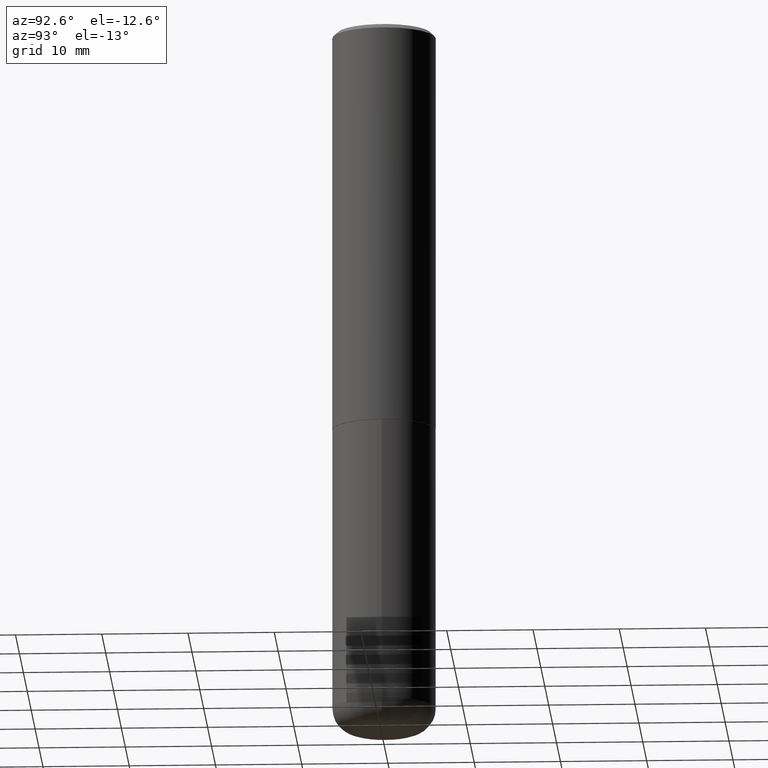
[diagram: clean part render]
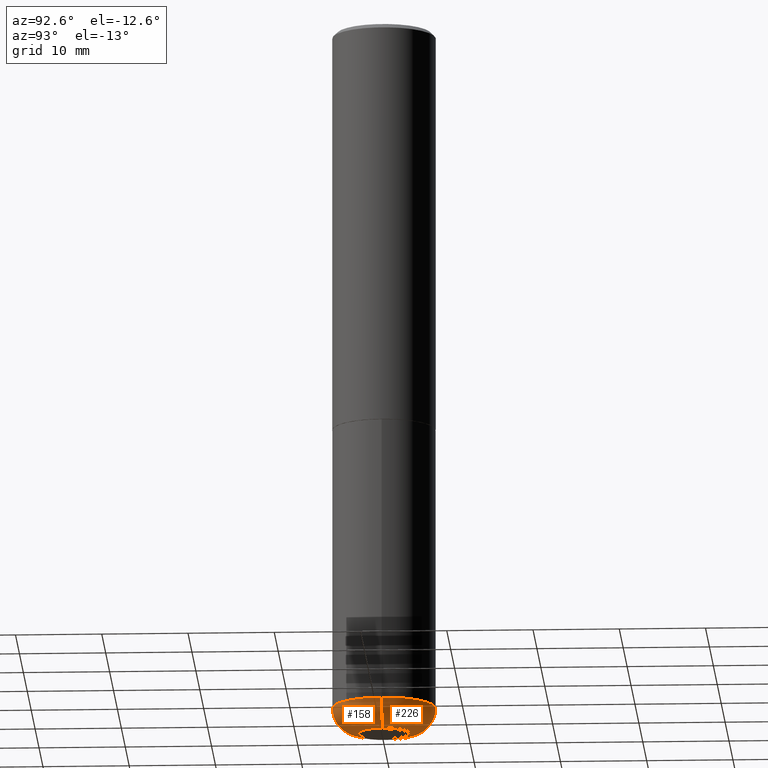
[diagram: same view with one multi-face feature highlighted, each face labeled with its STEP entity id]
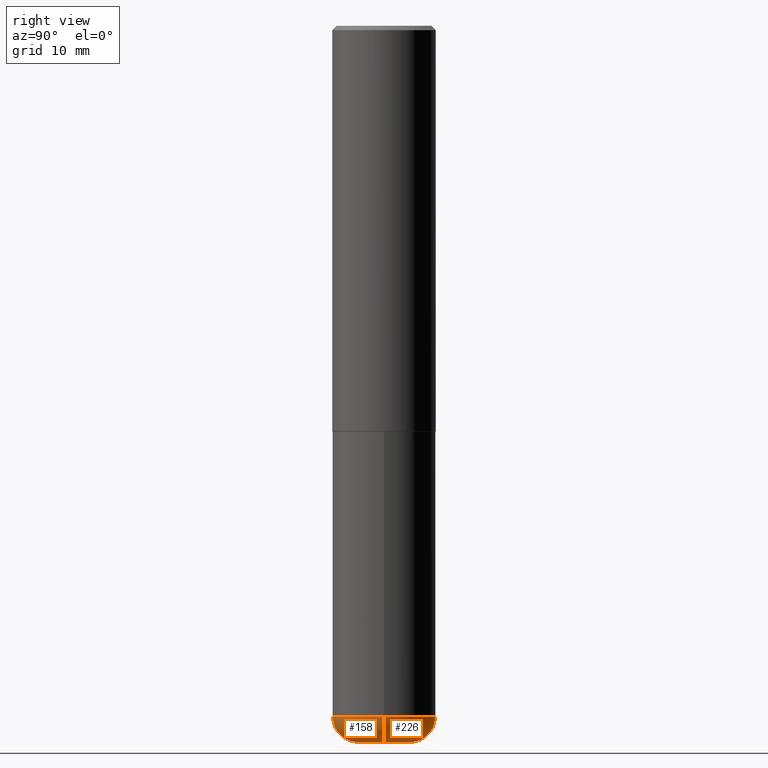
[diagram: same view with one multi-face feature highlighted, each face labeled with its STEP entity id]
A machine part, auxiliary view. The highlighted faces form ONE feature: a constant-radius fillet chain: 2 tangent blend faces with common blend radius 2.9997 mm. The faces share edges in the B-rep.
A second angle (right view) of the same feature is appended — it is thin or edge-on in the first view.
Their STEP definitions:
[1] entity #158 (Torus):
#2 = EDGE_CURVE ( 'NONE', #65, #227, #183, .T. ) ;
#5 = DIRECTION ( 'NONE',  ( 1.000000000000000000, -6.982962677686272233E-15, 0.000000000000000000 ) ) ;
#34 = AXIS2_PLACEMENT_3D ( 'NONE', #295, #239, #5 ) ;
#48 = DIRECTION ( 'NONE',  ( 1.000000000000000000, -6.982962677686263555E-15, 4.883557194083111780E-29 ) ) ;
#56 = AXIS2_PLACEMENT_3D ( 'NONE', #400, #142, #212 ) ;
#61 = ORIENTED_EDGE ( 'NONE', *, *, #228, .F. ) ;
#65 = VERTEX_POINT ( 'NONE', #274 ) ;
#66 = AXIS2_PLACEMENT_3D ( 'NONE', #81, #139, #48 ) ;
#81 = CARTESIAN_POINT ( 'NONE',  ( 7.702248551960706711E-29, -1.099676962482037231E-14, -3.149600000000000399 ) ) ;
#103 = CARTESIAN_POINT ( 'NONE',  ( 0.1180999999999999966, -1.182145751705512057E-14, -3.149600000000000399 ) ) ;
#131 = AXIS2_PLACEMENT_3D ( 'NONE', #291, #416, #262 ) ;
#139 = DIRECTION ( 'NONE',  ( -2.445468806185136597E-29, 3.491481338843145583E-15, 1.000000000000000000 ) ) ;
#142 = DIRECTION ( 'NONE',  ( 7.105427357601001859E-15, 1.000000000000000000, -3.491481338843145583E-15 ) ) ;
#143 = EDGE_CURVE ( 'NONE', #65, #230, #235, .T. ) ;
#158 = ADVANCED_FACE ( 'NONE', ( #171 ), #255, .T. ) ;
#171 = FACE_OUTER_BOUND ( 'NONE', #259, .T. ) ;
#175 = CARTESIAN_POINT ( 'NONE',  ( 0.2361999999999998823, -1.264614540928986883E-14, -3.149600000000000399 ) ) ;
#183 = CIRCLE ( 'NONE', #34, 0.1181000000000000105 ) ;
#187 = VERTEX_POINT ( 'NONE', #175 ) ;
#201 = DIRECTION ( 'NONE',  ( -6.982962677686266711E-15, -1.000000000000000000, 3.491481338843145583E-15 ) ) ;
#212 = DIRECTION ( 'NONE',  ( -1.000000000000000000, 7.105427357601001859E-15, 0.000000000000000000 ) ) ;
#227 = VERTEX_POINT ( 'NONE', #321 ) ;
#228 = EDGE_CURVE ( 'NONE', #230, #187, #293, .T. ) ;
#230 = VERTEX_POINT ( 'NONE', #381 ) ;
#235 = CIRCLE ( 'NONE', #56, 0.1180999999999997607 ) ;
#239 = DIRECTION ( 'NONE',  ( -2.445468806185136597E-29, 3.491481338843145583E-15, 1.000000000000000000 ) ) ;
#241 = AXIS2_PLACEMENT_3D ( 'NONE', #103, #201, #327 ) ;
#255 = TOROIDAL_SURFACE ( 'NONE', #66, 0.1180999999999999966, 0.1180999999999997607 ) ;
#259 = EDGE_LOOP ( 'NONE', ( #370, #271, #414, #61 ) ) ;
#261 = CIRCLE ( 'NONE', #241, 0.1180999999999997607 ) ;
#262 = DIRECTION ( 'NONE',  ( 1.000000000000000000, -6.982962677686264344E-15, 0.000000000000000000 ) ) ;
#271 = ORIENTED_EDGE ( 'NONE', *, *, #2, .T. ) ;
#274 = CARTESIAN_POINT ( 'NONE',  ( -0.1181000000000000383, -9.944215141480041685E-15, -3.267699999999999605 ) ) ;
#291 = CARTESIAN_POINT ( 'NONE',  ( 7.702248551960706711E-29, -1.099676962482037231E-14, -3.149600000000000399 ) ) ;
#293 = CIRCLE ( 'NONE', #131, 0.2362000000000000210 ) ;
#295 = CARTESIAN_POINT ( 'NONE',  ( 7.991058417971169471E-29, -1.140911357093774486E-14, -3.267699999999999605 ) ) ;
#321 = CARTESIAN_POINT ( 'NONE',  ( 0.1181000000000000105, -1.223380146317249313E-14, -3.267699999999999605 ) ) ;
#322 = EDGE_CURVE ( 'NONE', #227, #187, #261, .T. ) ;
#327 = DIRECTION ( 'NONE',  ( 1.000000000000000000, -6.982962677686270655E-15, 0.000000000000000000 ) ) ;
#370 = ORIENTED_EDGE ( 'NONE', *, *, #143, .F. ) ;
#381 = CARTESIAN_POINT ( 'NONE',  ( -0.2361999999999998823, -9.318467682955017493E-15, -3.149600000000000399 ) ) ;
#400 = CARTESIAN_POINT ( 'NONE',  ( -0.1180999999999999966, -1.015761865388769332E-14, -3.149600000000000399 ) ) ;
#414 = ORIENTED_EDGE ( 'NONE', *, *, #322, .T. ) ;
#416 = DIRECTION ( 'NONE',  ( -2.445468806185136597E-29, 3.491481338843145583E-15, 1.000000000000000000 ) ) ;
[2] entity #226 (Torus):
#31 = FACE_OUTER_BOUND ( 'NONE', #344, .T. ) ;
#33 = DIRECTION ( 'NONE',  ( -2.445468806185136597E-29, 3.491481338843145583E-15, 1.000000000000000000 ) ) ;
#56 = AXIS2_PLACEMENT_3D ( 'NONE', #400, #142, #212 ) ;
#60 = ORIENTED_EDGE ( 'NONE', *, *, #232, .F. ) ;
#64 = TOROIDAL_SURFACE ( 'NONE', #297, 0.1180999999999999966, 0.1180999999999997607 ) ;
#65 = VERTEX_POINT ( 'NONE', #274 ) ;
#78 = CARTESIAN_POINT ( 'NONE',  ( 7.991058417971169471E-29, -1.140911357093774486E-14, -3.267699999999999605 ) ) ;
#92 = ORIENTED_EDGE ( 'NONE', *, *, #143, .T. ) ;
#97 = CARTESIAN_POINT ( 'NONE',  ( 7.702248551960706711E-29, -1.099676962482037231E-14, -3.149600000000000399 ) ) ;
#101 = CIRCLE ( 'NONE', #379, 0.2362000000000000210 ) ;
#103 = CARTESIAN_POINT ( 'NONE',  ( 0.1180999999999999966, -1.182145751705512057E-14, -3.149600000000000399 ) ) ;
#123 = DIRECTION ( 'NONE',  ( 1.000000000000000000, -6.982962677686264344E-15, 0.000000000000000000 ) ) ;
#124 = AXIS2_PLACEMENT_3D ( 'NONE', #78, #209, #173 ) ;
#130 = DIRECTION ( 'NONE',  ( 1.000000000000000000, -6.982962677686263555E-15, 4.883557194083111780E-29 ) ) ;
#142 = DIRECTION ( 'NONE',  ( 7.105427357601001859E-15, 1.000000000000000000, -3.491481338843145583E-15 ) ) ;
#143 = EDGE_CURVE ( 'NONE', #65, #230, #235, .T. ) ;
#173 = DIRECTION ( 'NONE',  ( 1.000000000000000000, -6.982962677686272233E-15, 0.000000000000000000 ) ) ;
#175 = CARTESIAN_POINT ( 'NONE',  ( 0.2361999999999998823, -1.264614540928986883E-14, -3.149600000000000399 ) ) ;
#176 = EDGE_CURVE ( 'NONE', #227, #65, #302, .T. ) ;
#187 = VERTEX_POINT ( 'NONE', #175 ) ;
#201 = DIRECTION ( 'NONE',  ( -6.982962677686266711E-15, -1.000000000000000000, 3.491481338843145583E-15 ) ) ;
#209 = DIRECTION ( 'NONE',  ( -2.445468806185136597E-29, 3.491481338843145583E-15, 1.000000000000000000 ) ) ;
#212 = DIRECTION ( 'NONE',  ( -1.000000000000000000, 7.105427357601001859E-15, 0.000000000000000000 ) ) ;
#222 = ORIENTED_EDGE ( 'NONE', *, *, #176, .T. ) ;
#226 = ADVANCED_FACE ( 'NONE', ( #31 ), #64, .T. ) ;
#227 = VERTEX_POINT ( 'NONE', #321 ) ;
#230 = VERTEX_POINT ( 'NONE', #381 ) ;
#232 = EDGE_CURVE ( 'NONE', #187, #230, #101, .T. ) ;
#235 = CIRCLE ( 'NONE', #56, 0.1180999999999997607 ) ;
#241 = AXIS2_PLACEMENT_3D ( 'NONE', #103, #201, #327 ) ;
#261 = CIRCLE ( 'NONE', #241, 0.1180999999999997607 ) ;
#274 = CARTESIAN_POINT ( 'NONE',  ( -0.1181000000000000383, -9.944215141480041685E-15, -3.267699999999999605 ) ) ;
#290 = CARTESIAN_POINT ( 'NONE',  ( 7.702248551960706711E-29, -1.099676962482037231E-14, -3.149600000000000399 ) ) ;
#297 = AXIS2_PLACEMENT_3D ( 'NONE', #290, #33, #130 ) ;
#302 = CIRCLE ( 'NONE', #124, 0.1181000000000000105 ) ;
#321 = CARTESIAN_POINT ( 'NONE',  ( 0.1181000000000000105, -1.223380146317249313E-14, -3.267699999999999605 ) ) ;
#322 = EDGE_CURVE ( 'NONE', #227, #187, #261, .T. ) ;
#327 = DIRECTION ( 'NONE',  ( 1.000000000000000000, -6.982962677686270655E-15, 0.000000000000000000 ) ) ;
#344 = EDGE_LOOP ( 'NONE', ( #222, #92, #60, #413 ) ) ;
#350 = DIRECTION ( 'NONE',  ( -2.445468806185136597E-29, 3.491481338843145583E-15, 1.000000000000000000 ) ) ;
#379 = AXIS2_PLACEMENT_3D ( 'NONE', #97, #350, #123 ) ;
#381 = CARTESIAN_POINT ( 'NONE',  ( -0.2361999999999998823, -9.318467682955017493E-15, -3.149600000000000399 ) ) ;
#400 = CARTESIAN_POINT ( 'NONE',  ( -0.1180999999999999966, -1.015761865388769332E-14, -3.149600000000000399 ) ) ;
#413 = ORIENTED_EDGE ( 'NONE', *, *, #322, .F. ) ;